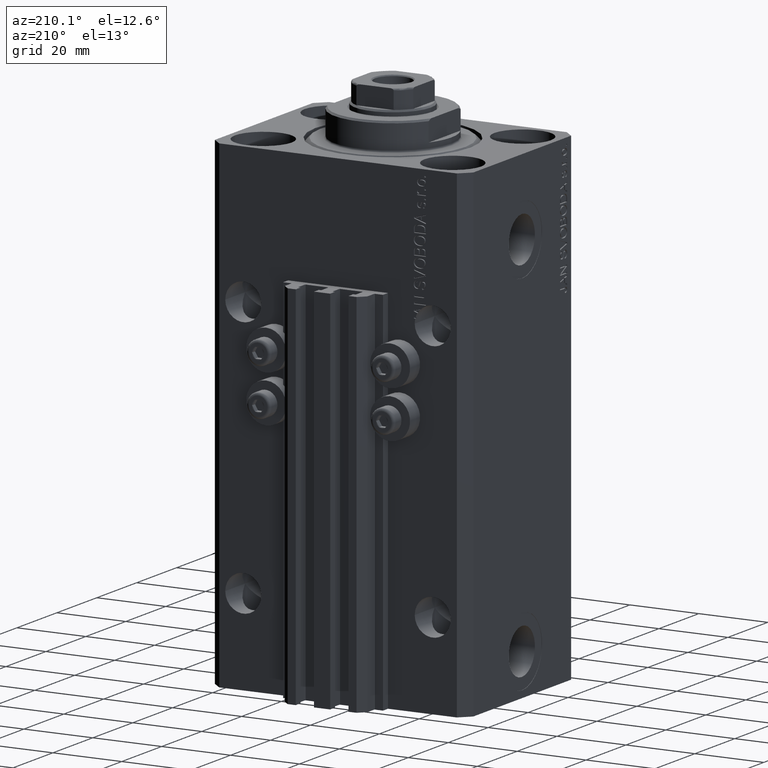
[diagram: clean part render]
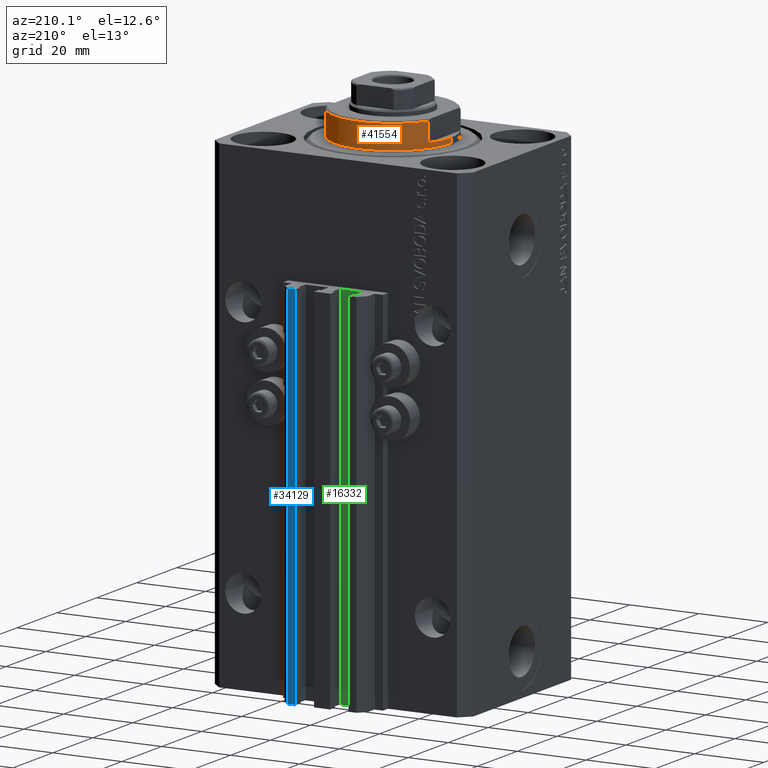
[diagram: same view with three faces highlighted in distinct colors, each labeled with its STEP entity id]
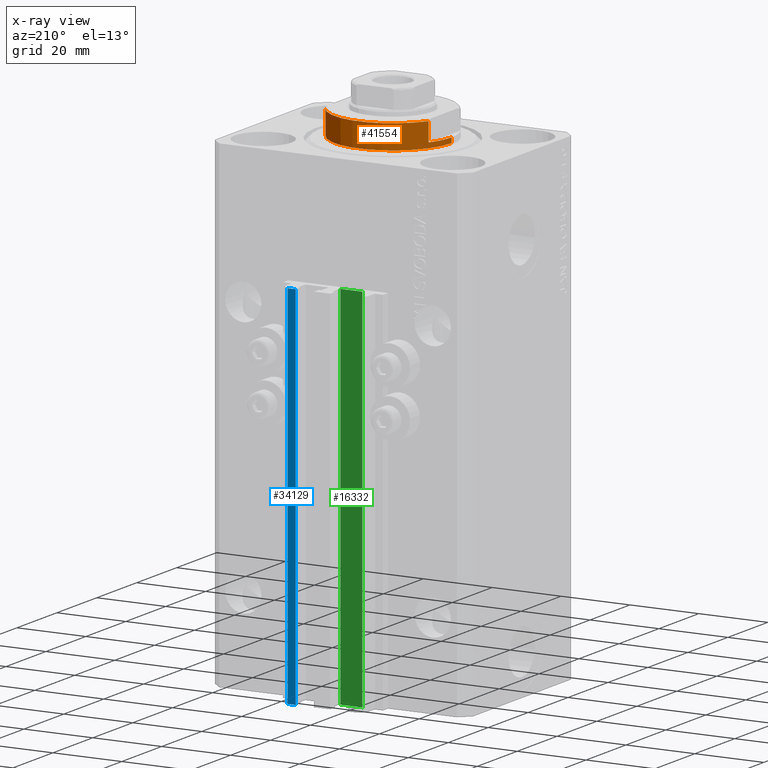
[diagram: x-ray of the same camera — body ghosted, the three highlighted faces saturated]
A machine part, auxiliary view with three faces highlighted in distinct colors.
The next image is the same camera in x-ray (body ghosted, the three faces saturated) — at least one of them is partly hidden behind the body in this view.
Their STEP definitions:

[orange] entity #41554 — the highlighted cylindrical surface (partial cylindrical patch) has radius 17 mm, axis along (0, 0, -1).
#127 = CYLINDRICAL_SURFACE ( 'NONE', #37218, 17.00000000000000000 ) ;
#319 = AXIS2_PLACEMENT_3D ( 'NONE', #7871, #40813, #45384 ) ;
#366 = DIRECTION ( 'NONE',  ( -0.000000000000000000, -0.000000000000000000, 1.000000000000000000 ) ) ;
#1122 = CARTESIAN_POINT ( 'NONE',  ( 15.00000000000000000, 8.000000000000001776, -8.000000000000000000 ) ) ;
#2704 = CARTESIAN_POINT ( 'NONE',  ( 15.00000000000000000, 8.000000000000001776, -7.500000000000007105 ) ) ;
#2984 = CIRCLE ( 'NONE', #9173, 17.00000000000000000 ) ;
#3237 = DIRECTION ( 'NONE',  ( -0.000000000000000000, -0.000000000000000000, -1.000000000000000000 ) ) ;
#3650 = VERTEX_POINT ( 'NONE', #18456 ) ;
#4238 = DIRECTION ( 'NONE',  ( -0.000000000000000000, -0.000000000000000000, 1.000000000000000000 ) ) ;
#4359 = DIRECTION ( 'NONE',  ( -1.000000000000000000, 0.000000000000000000, 0.000000000000000000 ) ) ;
#5101 = DIRECTION ( 'NONE',  ( 0.000000000000000000, 0.000000000000000000, 1.000000000000000000 ) ) ;
#6579 = VERTEX_POINT ( 'NONE', #9910 ) ;
#6897 = ORIENTED_EDGE ( 'NONE', *, *, #21061, .F. ) ;
#7871 = CARTESIAN_POINT ( 'NONE',  ( 0.000000000000000000, 0.000000000000000000, -2.000000000000000000 ) ) ;
#8021 = CARTESIAN_POINT ( 'NONE',  ( -17.00000000000000000, 2.081899558550500280E-15, -0.5000000000000004441 ) ) ;
#8666 = EDGE_CURVE ( 'NONE', #15847, #33346, #31853, .T. ) ;
#8923 = CARTESIAN_POINT ( 'NONE',  ( 14.99999999999999645, 8.000000000000003553, -2.000000000000000000 ) ) ;
#9069 = ORIENTED_EDGE ( 'NONE', *, *, #8666, .T. ) ;
#9173 = AXIS2_PLACEMENT_3D ( 'NONE', #20615, #5101, #35393 ) ;
#9791 = VECTOR ( 'NONE', #43006, 1000.000000000000000 ) ;
#9910 = CARTESIAN_POINT ( 'NONE',  ( -14.99999999999999645, 8.000000000000003553, -2.000000000000000000 ) ) ;
#10456 = ORIENTED_EDGE ( 'NONE', *, *, #15947, .F. ) ;
#10821 = VERTEX_POINT ( 'NONE', #40282 ) ;
#11498 = AXIS2_PLACEMENT_3D ( 'NONE', #43920, #3237, #25305 ) ;
#11755 = CARTESIAN_POINT ( 'NONE',  ( -15.00000000000000000, 8.000000000000001776, -8.000000000000000000 ) ) ;
#11756 = EDGE_CURVE ( 'NONE', #15045, #6579, #37435, .T. ) ;
#13528 = VECTOR ( 'NONE', #4238, 1000.000000000000000 ) ;
#15045 = VERTEX_POINT ( 'NONE', #18084 ) ;
#15399 = EDGE_LOOP ( 'NONE', ( #15530, #9069, #18541, #10456, #6897, #26536, #34352, #26822 ) ) ;
#15530 = ORIENTED_EDGE ( 'NONE', *, *, #25426, .F. ) ;
#15847 = VERTEX_POINT ( 'NONE', #23429 ) ;
#15947 = EDGE_CURVE ( 'NONE', #3650, #10821, #46631, .T. ) ;
#17105 = CARTESIAN_POINT ( 'NONE',  ( 17.00000000000000000, 0.000000000000000000, -8.000000000000000000 ) ) ;
#18084 = CARTESIAN_POINT ( 'NONE',  ( -15.00000000000000000, 8.000000000000001776, -7.500000000000007105 ) ) ;
#18196 = CARTESIAN_POINT ( 'NONE',  ( 0.000000000000000000, 0.000000000000000000, -2.000000000000000000 ) ) ;
#18252 = CIRCLE ( 'NONE', #28328, 17.00000000000000000 ) ;
#18456 = CARTESIAN_POINT ( 'NONE',  ( 17.00000000000000000, 0.000000000000000000, -2.000000000000000000 ) ) ;
#18541 = ORIENTED_EDGE ( 'NONE', *, *, #32034, .T. ) ;
#20615 = CARTESIAN_POINT ( 'NONE',  ( 0.000000000000000000, 0.000000000000000000, -7.500000000000007105 ) ) ;
#21061 = EDGE_CURVE ( 'NONE', #35773, #3650, #38230, .T. ) ;
#22957 = VERTEX_POINT ( 'NONE', #2704 ) ;
#23429 = CARTESIAN_POINT ( 'NONE',  ( -17.00000000000000000, 2.081899558550500280E-15, -2.000000000000000000 ) ) ;
#25305 = DIRECTION ( 'NONE',  ( 1.000000000000000000, 0.000000000000000000, 0.000000000000000000 ) ) ;
#25426 = EDGE_CURVE ( 'NONE', #15847, #6579, #18252, .T. ) ;
#25870 = LINE ( 'NONE', #1122, #40854 ) ;
#26536 = ORIENTED_EDGE ( 'NONE', *, *, #30858, .F. ) ;
#26822 = ORIENTED_EDGE ( 'NONE', *, *, #11756, .T. ) ;
#28228 = CARTESIAN_POINT ( 'NONE',  ( -17.00000000000000000, 2.081899558550500280E-15, -8.000000000000000000 ) ) ;
#28328 = AXIS2_PLACEMENT_3D ( 'NONE', #18196, #37559, #4359 ) ;
#29952 = DIRECTION ( 'NONE',  ( 1.000000000000000000, 0.000000000000000000, 0.000000000000000000 ) ) ;
#30858 = EDGE_CURVE ( 'NONE', #22957, #35773, #25870, .T. ) ;
#31853 = LINE ( 'NONE', #28228, #36735 ) ;
#32034 = EDGE_CURVE ( 'NONE', #33346, #10821, #32296, .T. ) ;
#32296 = CIRCLE ( 'NONE', #11498, 17.00000000000000000 ) ;
#33346 = VERTEX_POINT ( 'NONE', #8021 ) ;
#34352 = ORIENTED_EDGE ( 'NONE', *, *, #34814, .T. ) ;
#34814 = EDGE_CURVE ( 'NONE', #22957, #15045, #2984, .T. ) ;
#35393 = DIRECTION ( 'NONE',  ( -1.000000000000000000, 0.000000000000000000, 0.000000000000000000 ) ) ;
#35486 = DIRECTION ( 'NONE',  ( -0.000000000000000000, -0.000000000000000000, 1.000000000000000000 ) ) ;
#35773 = VERTEX_POINT ( 'NONE', #8923 ) ;
#36735 = VECTOR ( 'NONE', #35486, 1000.000000000000000 ) ;
#37218 = AXIS2_PLACEMENT_3D ( 'NONE', #44929, #366, #29952 ) ;
#37435 = LINE ( 'NONE', #11755, #13528 ) ;
#37559 = DIRECTION ( 'NONE',  ( 0.000000000000000000, 0.000000000000000000, -1.000000000000000000 ) ) ;
#37926 = FACE_OUTER_BOUND ( 'NONE', #15399, .T. ) ;
#38230 = CIRCLE ( 'NONE', #319, 17.00000000000000000 ) ;
#40282 = CARTESIAN_POINT ( 'NONE',  ( 17.00000000000000000, 0.000000000000000000, -0.5000000000000004441 ) ) ;
#40638 = DIRECTION ( 'NONE',  ( -0.000000000000000000, -0.000000000000000000, 1.000000000000000000 ) ) ;
#40813 = DIRECTION ( 'NONE',  ( 0.000000000000000000, 0.000000000000000000, -1.000000000000000000 ) ) ;
#40854 = VECTOR ( 'NONE', #40638, 1000.000000000000000 ) ;
#41554 = ADVANCED_FACE ( 'NONE', ( #37926 ), #127, .T. ) ;
#43006 = DIRECTION ( 'NONE',  ( -0.000000000000000000, -0.000000000000000000, 1.000000000000000000 ) ) ;
#43920 = CARTESIAN_POINT ( 'NONE',  ( 0.000000000000000000, 0.000000000000000000, -0.5000000000000004441 ) ) ;
#44929 = CARTESIAN_POINT ( 'NONE',  ( 0.000000000000000000, 0.000000000000000000, -8.000000000000000000 ) ) ;
#45384 = DIRECTION ( 'NONE',  ( -1.000000000000000000, 0.000000000000000000, 0.000000000000000000 ) ) ;
#46631 = LINE ( 'NONE', #17105, #9791 ) ;

[blue] entity #34129 — the highlighted planar face has unit normal (0, 1, 0).
#2172 = ORIENTED_EDGE ( 'NONE', *, *, #13894, .T. ) ;
#3395 = VECTOR ( 'NONE', #18900, 1000.000000000000000 ) ;
#4234 = VECTOR ( 'NONE', #46518, 1000.000000000000000 ) ;
#5716 = CARTESIAN_POINT ( 'NONE',  ( 9.999999999999998224, 35.50000000000001421, -140.0000000000000000 ) ) ;
#6827 = EDGE_CURVE ( 'NONE', #25734, #30839, #33677, .T. ) ;
#7065 = DIRECTION ( 'NONE',  ( 0.000000000000000000, 1.000000000000000000, -0.000000000000000000 ) ) ;
#7933 = CARTESIAN_POINT ( 'NONE',  ( 7.649999999999998579, 35.50000000000001421, -33.00000000000000000 ) ) ;
#11319 = LINE ( 'NONE', #44478, #21872 ) ;
#11566 = VERTEX_POINT ( 'NONE', #5716 ) ;
#11817 = CARTESIAN_POINT ( 'NONE',  ( 9.999999999999998224, 35.50000000000001421, -33.00000000000000000 ) ) ;
#13894 = EDGE_CURVE ( 'NONE', #14681, #30839, #37832, .T. ) ;
#14122 = ORIENTED_EDGE ( 'NONE', *, *, #44153, .F. ) ;
#14229 = DIRECTION ( 'NONE',  ( 0.000000000000000000, 0.000000000000000000, 1.000000000000000000 ) ) ;
#14580 = CARTESIAN_POINT ( 'NONE',  ( 9.999999999999998224, 35.50000000000001421, -140.0000000000000000 ) ) ;
#14681 = VERTEX_POINT ( 'NONE', #47508 ) ;
#15746 = CARTESIAN_POINT ( 'NONE',  ( 9.999999999999998224, 35.50000000000001421, -33.00000000000000000 ) ) ;
#17576 = EDGE_LOOP ( 'NONE', ( #45804, #14122, #46294, #2172 ) ) ;
#18900 = DIRECTION ( 'NONE',  ( -1.000000000000000000, 0.000000000000000000, 0.000000000000000000 ) ) ;
#19662 = DIRECTION ( 'NONE',  ( 0.000000000000000000, 0.000000000000000000, 1.000000000000000000 ) ) ;
#21872 = VECTOR ( 'NONE', #14229, 1000.000000000000000 ) ;
#23576 = EDGE_CURVE ( 'NONE', #11566, #14681, #35156, .T. ) ;
#25020 = PLANE ( 'NONE',  #45471 ) ;
#25734 = VERTEX_POINT ( 'NONE', #11817 ) ;
#29372 = FACE_OUTER_BOUND ( 'NONE', #17576, .T. ) ;
#30839 = VERTEX_POINT ( 'NONE', #7933 ) ;
#32928 = VECTOR ( 'NONE', #19662, 1000.000000000000000 ) ;
#33677 = LINE ( 'NONE', #15746, #3395 ) ;
#34129 = ADVANCED_FACE ( 'NONE', ( #29372 ), #25020, .T. ) ;
#35156 = LINE ( 'NONE', #43358, #4234 ) ;
#37344 = CARTESIAN_POINT ( 'NONE',  ( 7.649999999999998579, 35.50000000000001421, -140.0000000000000000 ) ) ;
#37832 = LINE ( 'NONE', #37344, #32928 ) ;
#40731 = DIRECTION ( 'NONE',  ( 0.000000000000000000, 0.000000000000000000, 1.000000000000000000 ) ) ;
#43358 = CARTESIAN_POINT ( 'NONE',  ( 9.999999999999998224, 35.50000000000001421, -140.0000000000000000 ) ) ;
#44153 = EDGE_CURVE ( 'NONE', #11566, #25734, #11319, .T. ) ;
#44478 = CARTESIAN_POINT ( 'NONE',  ( 9.999999999999998224, 35.50000000000001421, -140.0000000000000000 ) ) ;
#45471 = AXIS2_PLACEMENT_3D ( 'NONE', #14580, #7065, #40731 ) ;
#45804 = ORIENTED_EDGE ( 'NONE', *, *, #6827, .F. ) ;
#46294 = ORIENTED_EDGE ( 'NONE', *, *, #23576, .T. ) ;
#46518 = DIRECTION ( 'NONE',  ( -1.000000000000000000, 0.000000000000000000, 0.000000000000000000 ) ) ;
#47508 = CARTESIAN_POINT ( 'NONE',  ( 7.649999999999998579, 35.50000000000001421, -140.0000000000000000 ) ) ;

[green] entity #16332 — the highlighted planar face has unit normal (0, 1, 0).
#1130 = EDGE_CURVE ( 'NONE', #19188, #9390, #37170, .T. ) ;
#1443 = EDGE_CURVE ( 'NONE', #25573, #19188, #1928, .T. ) ;
#1928 = LINE ( 'NONE', #41678, #44180 ) ;
#4498 = CARTESIAN_POINT ( 'NONE',  ( -1.800000000000000933, 29.50000000000000355, -140.0000000000000000 ) ) ;
#5953 = CARTESIAN_POINT ( 'NONE',  ( -1.800000000000000933, 29.50000000000000355, -33.00000000000000000 ) ) ;
#7363 = ORIENTED_EDGE ( 'NONE', *, *, #27331, .F. ) ;
#8499 = DIRECTION ( 'NONE',  ( -1.000000000000000000, 0.000000000000000000, 0.000000000000000000 ) ) ;
#9390 = VERTEX_POINT ( 'NONE', #44938 ) ;
#12739 = ORIENTED_EDGE ( 'NONE', *, *, #32747, .F. ) ;
#13788 = CARTESIAN_POINT ( 'NONE',  ( -1.800000000000000933, 29.50000000000000355, -140.0000000000000000 ) ) ;
#14004 = CARTESIAN_POINT ( 'NONE',  ( -1.800000000000000933, 29.50000000000000355, -33.00000000000000000 ) ) ;
#14843 = PLANE ( 'NONE',  #43042 ) ;
#16127 = LINE ( 'NONE', #4498, #20702 ) ;
#16332 = ADVANCED_FACE ( 'NONE', ( #18495 ), #14843, .T. ) ;
#18495 = FACE_OUTER_BOUND ( 'NONE', #24477, .T. ) ;
#19188 = VERTEX_POINT ( 'NONE', #34276 ) ;
#19716 = ORIENTED_EDGE ( 'NONE', *, *, #1443, .T. ) ;
#20702 = VECTOR ( 'NONE', #23397, 1000.000000000000000 ) ;
#23397 = DIRECTION ( 'NONE',  ( 0.000000000000000000, 0.000000000000000000, 1.000000000000000000 ) ) ;
#23909 = DIRECTION ( 'NONE',  ( -1.000000000000000000, 0.000000000000000000, 0.000000000000000000 ) ) ;
#24477 = EDGE_LOOP ( 'NONE', ( #7363, #12739, #19716, #47108 ) ) ;
#25573 = VERTEX_POINT ( 'NONE', #13788 ) ;
#26282 = DIRECTION ( 'NONE',  ( 0.000000000000000000, 0.000000000000000000, 1.000000000000000000 ) ) ;
#27331 = EDGE_CURVE ( 'NONE', #36858, #9390, #43007, .T. ) ;
#29635 = DIRECTION ( 'NONE',  ( 0.000000000000000000, 1.000000000000000000, -0.000000000000000000 ) ) ;
#30710 = VECTOR ( 'NONE', #23909, 1000.000000000000000 ) ;
#32747 = EDGE_CURVE ( 'NONE', #25573, #36858, #16127, .T. ) ;
#33537 = CARTESIAN_POINT ( 'NONE',  ( -8.199999999999997513, 29.50000000000000355, -140.0000000000000000 ) ) ;
#34276 = CARTESIAN_POINT ( 'NONE',  ( -8.199999999999997513, 29.50000000000000355, -140.0000000000000000 ) ) ;
#36858 = VERTEX_POINT ( 'NONE', #14004 ) ;
#37170 = LINE ( 'NONE', #33537, #39575 ) ;
#39575 = VECTOR ( 'NONE', #26282, 1000.000000000000000 ) ;
#41000 = DIRECTION ( 'NONE',  ( 0.000000000000000000, 0.000000000000000000, 1.000000000000000000 ) ) ;
#41239 = CARTESIAN_POINT ( 'NONE',  ( -1.800000000000000933, 29.50000000000000355, -140.0000000000000000 ) ) ;
#41678 = CARTESIAN_POINT ( 'NONE',  ( -1.800000000000000933, 29.50000000000000355, -140.0000000000000000 ) ) ;
#43007 = LINE ( 'NONE', #5953, #30710 ) ;
#43042 = AXIS2_PLACEMENT_3D ( 'NONE', #41239, #29635, #41000 ) ;
#44180 = VECTOR ( 'NONE', #8499, 1000.000000000000000 ) ;
#44938 = CARTESIAN_POINT ( 'NONE',  ( -8.199999999999997513, 29.50000000000000355, -33.00000000000000000 ) ) ;
#47108 = ORIENTED_EDGE ( 'NONE', *, *, #1130, .T. ) ;